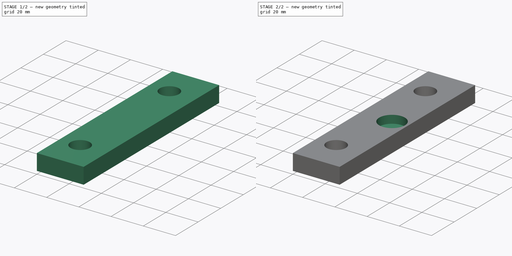
[diagram: build sequence overview — one tinted view per stage of 2, left to right]
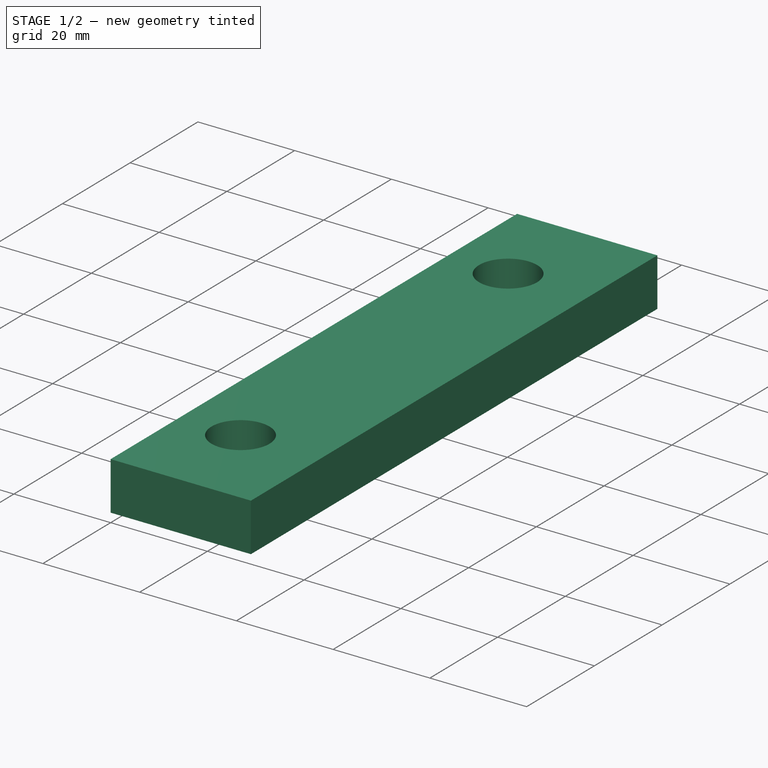
[diagram: stage 1 of 2 — iso view after this stage's code; geometry added in this stage tinted green]
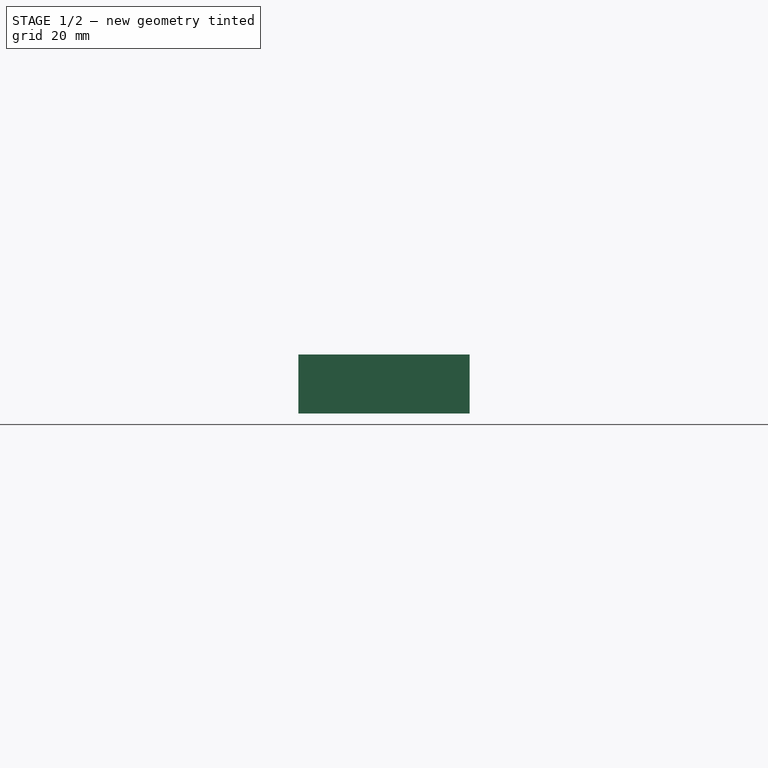
[diagram: stage 1 of 2 — front view after this stage's code; geometry added in this stage tinted green]
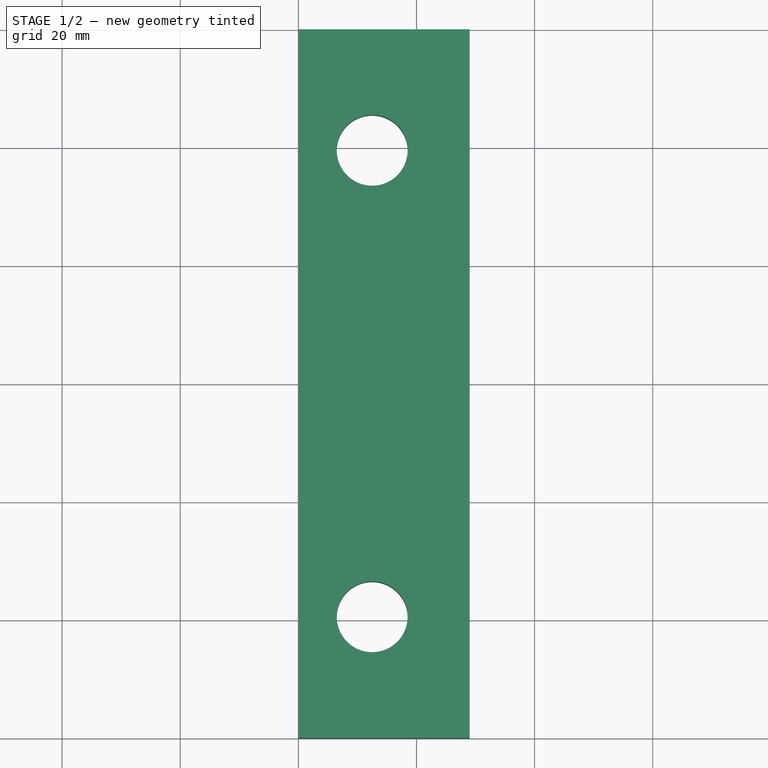
[diagram: stage 1 of 2 — top view after this stage's code; geometry added in this stage tinted green]
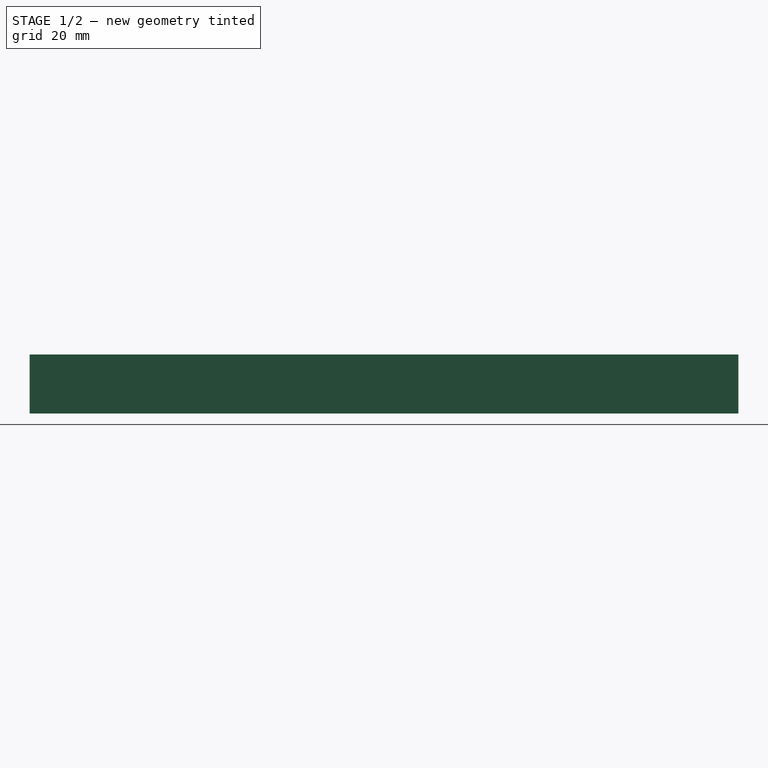
[diagram: stage 1 of 2 — right view after this stage's code; geometry added in this stage tinted green]
FCSTD DOCUMENT
Label: Z_B
objects: Sketcher::SketchObject×2, PartDesign::Pocket×2, Part::Box×1
note: 7 computed .brp shape members not serialized (recipe doc carries the construction recipe); baked Part::Feature solids carry a one-line shape summary decoded from their .brp

FEATURE [Part::Box] Box
  Height = 10
  Length = 29
  Width = 120
FEATURE [Sketcher::SketchObject] Sketch
  Placement = pos=(0,0,10) rot=(0,0,1;0rad)
  Support = -> Box [Face6]
  sketch-geometry (3):
    g0: Circle CenterX=12.5 CenterY=99.5 CenterZ=0 NormalX=0 NormalY=0 NormalZ=1 Radius=6
    g1: Circle CenterX=12.5 CenterY=20.5 CenterZ=0 NormalX=0 NormalY=0 NormalZ=1 Radius=6
    g2: LineSegment [constr] StartX=0 StartY=60 StartZ=0 EndX=29 EndY=60 EndZ=0
  constraints (9):
    c: PointOnObject(g2,g-2)
    c: Horizontal(g2)
    c: DistanceX(g2) = 29
    c: DistanceY(g-1,g2) = 60
    c: Symmetric(g1,g0,g2)
    c: Equal(g0,g1)
    c: Radius(g0) = 6
    c: DistanceX(g1) = 12.5
    c: DistanceY(g1) = 20.5
FEATURE [PartDesign::Pocket] Pocket
  Length = 5
  Sketch = -> Sketch
  Type = 1
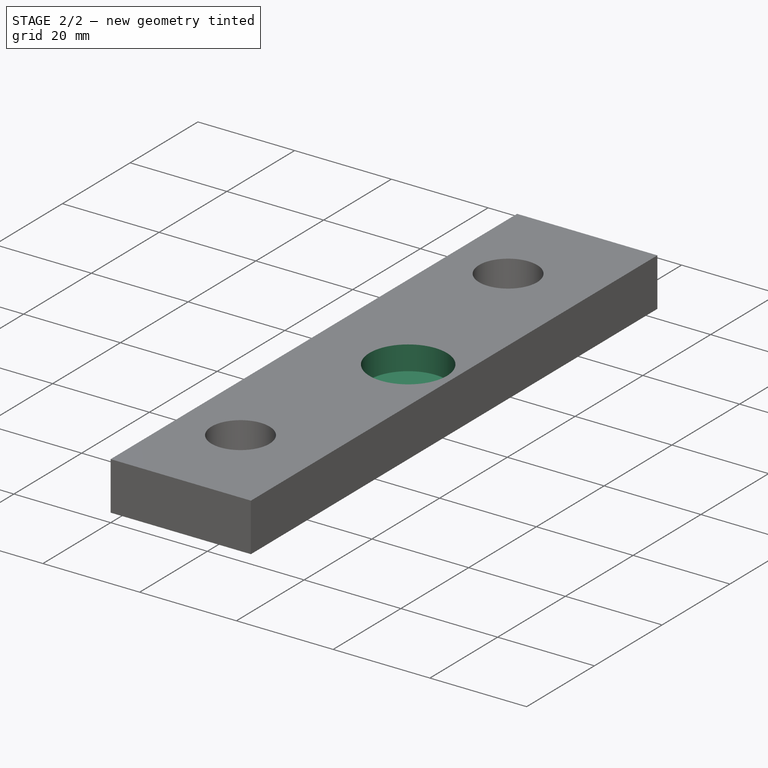
[diagram: stage 2 of 2 — iso view after this stage's code; geometry added in this stage tinted green]
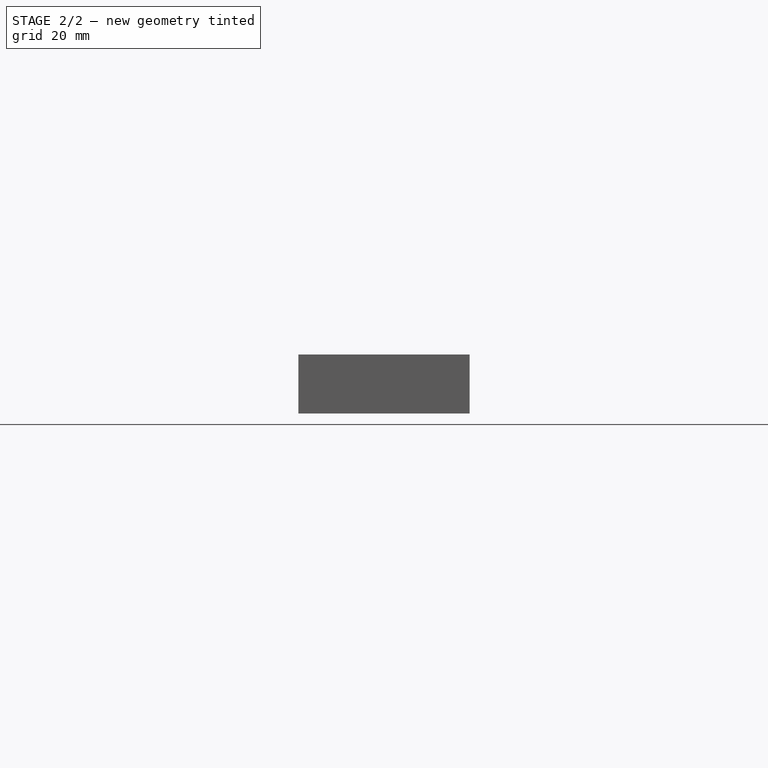
[diagram: stage 2 of 2 — front view after this stage's code; geometry added in this stage tinted green]
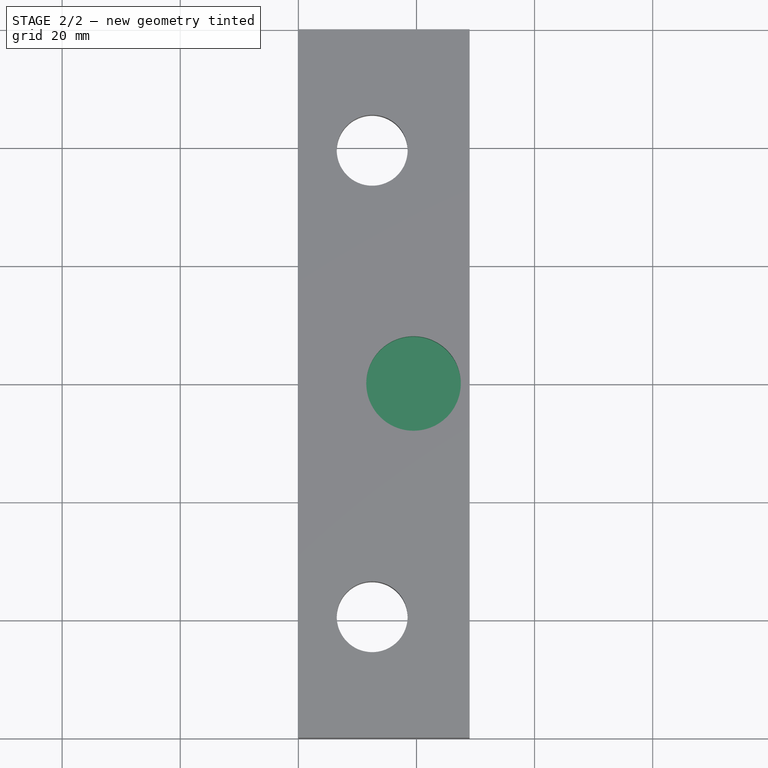
[diagram: stage 2 of 2 — top view after this stage's code; geometry added in this stage tinted green]
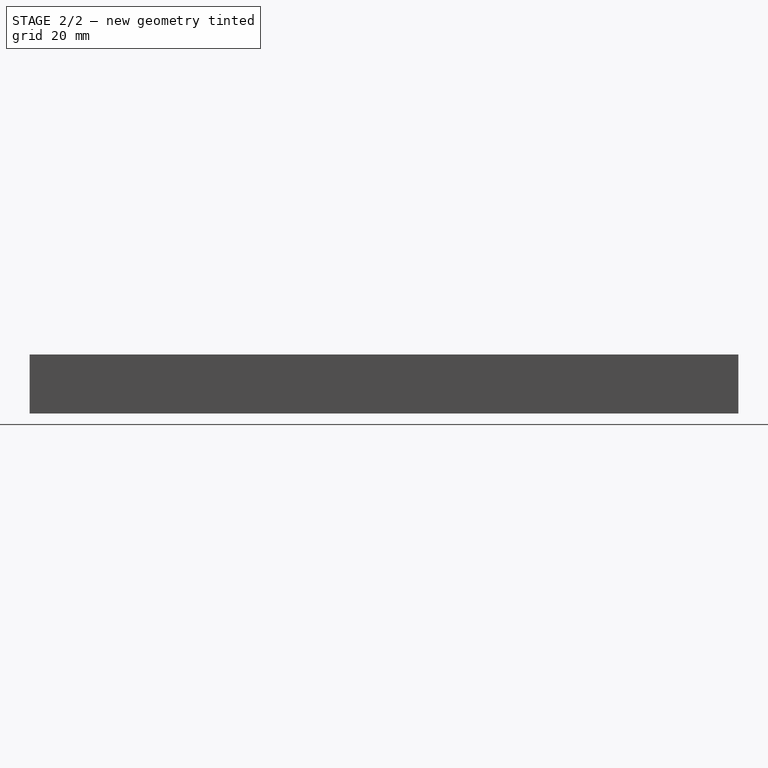
[diagram: stage 2 of 2 — right view after this stage's code; geometry added in this stage tinted green]
FEATURE [Sketcher::SketchObject] Sketch001
  Placement = pos=(0,0,10) rot=(0,0,1;0rad)
  Support = -> Pocket [Face3]
  sketch-geometry (3):
    g0: LineSegment [constr] StartX=0 StartY=60 StartZ=0 EndX=29 EndY=60 EndZ=0
    g1: LineSegment [constr] StartX=19.5 StartY=120 StartZ=0 EndX=19.5 EndY=0 EndZ=0
    g2: Circle CenterX=19.5 CenterY=60 CenterZ=0 NormalX=0 NormalY=0 NormalZ=1 Radius=8
  constraints (11):
    c: PointOnObject(g0,g-2)
    c: Horizontal(g0)
    c: DistanceX(g0) = 29
    c: DistanceY(g-1,g0) = 60
    c: PointOnObject(g1,g-1)
    c: Vertical(g1)
    c: DistanceY(g1) = -120
    c: DistanceX(g-1,g1) = 19.5
    c: PointOnObject(g2,g0)
    c: PointOnObject(g2,g1)
    c: Radius(g2) = 8
FEATURE [PartDesign::Pocket] Pocket001
  Length = 5
  Sketch = -> Sketch001
  Type = 0
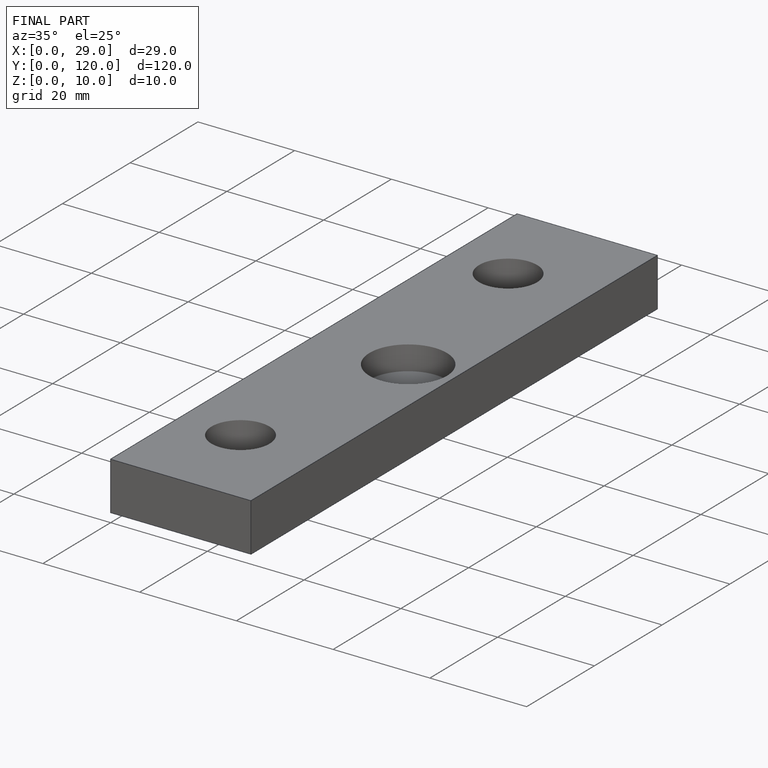
[diagram: finished part — iso view with bounding-box wireframe]
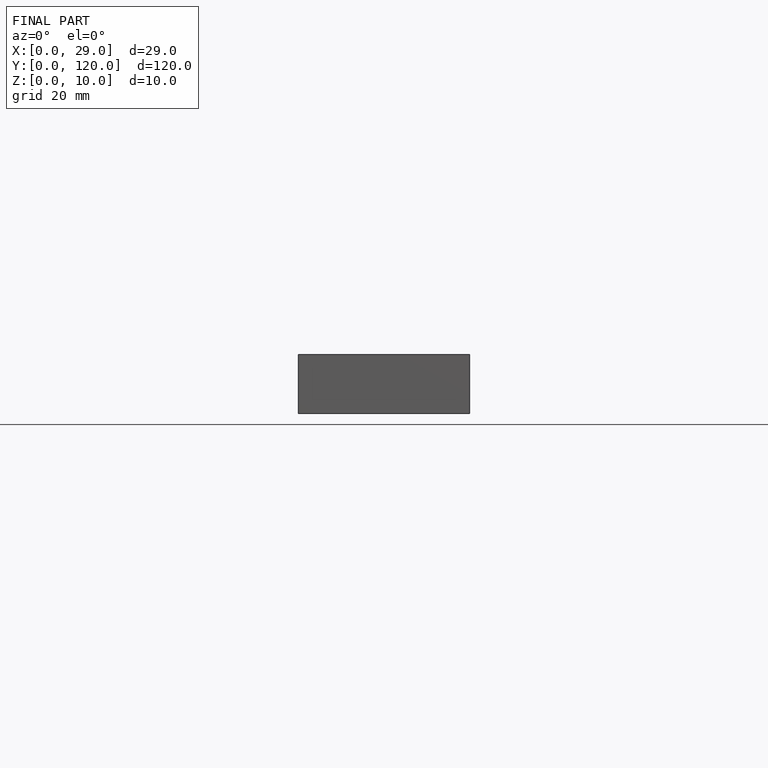
[diagram: finished part — front view with bounding-box wireframe]
